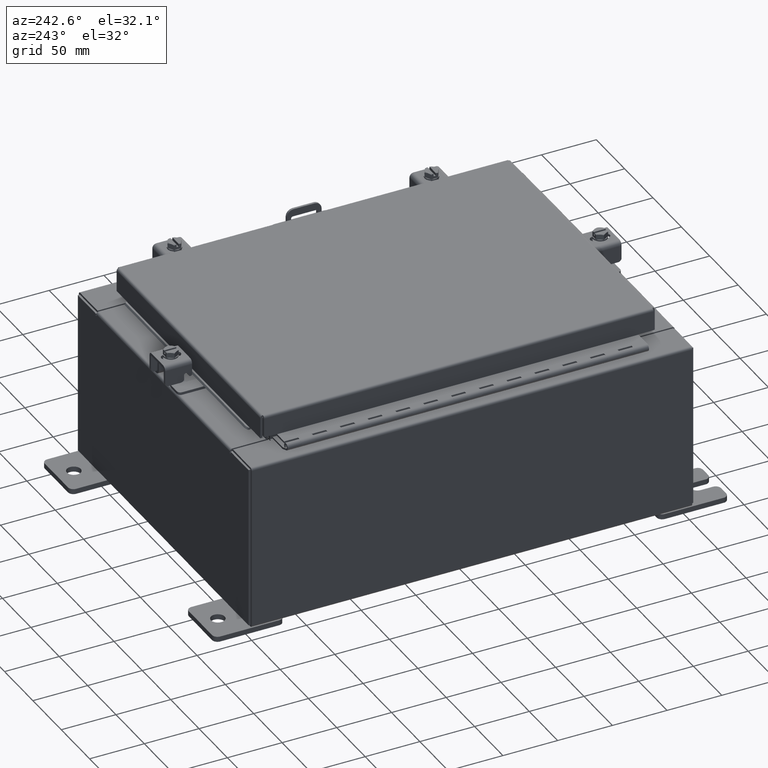
[diagram: clean part render]
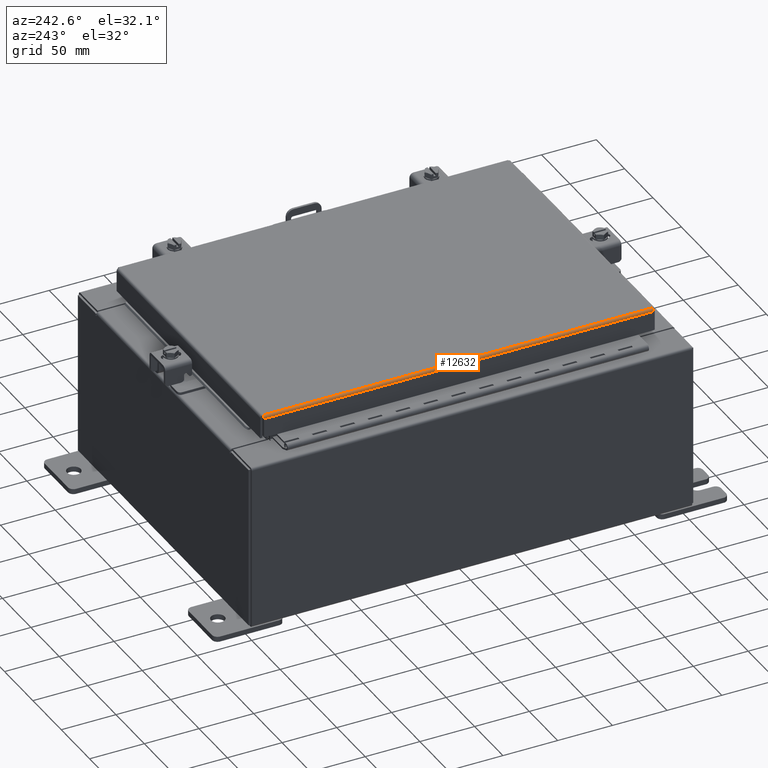
[diagram: same view with one face highlighted and labeled with its STEP entity id]
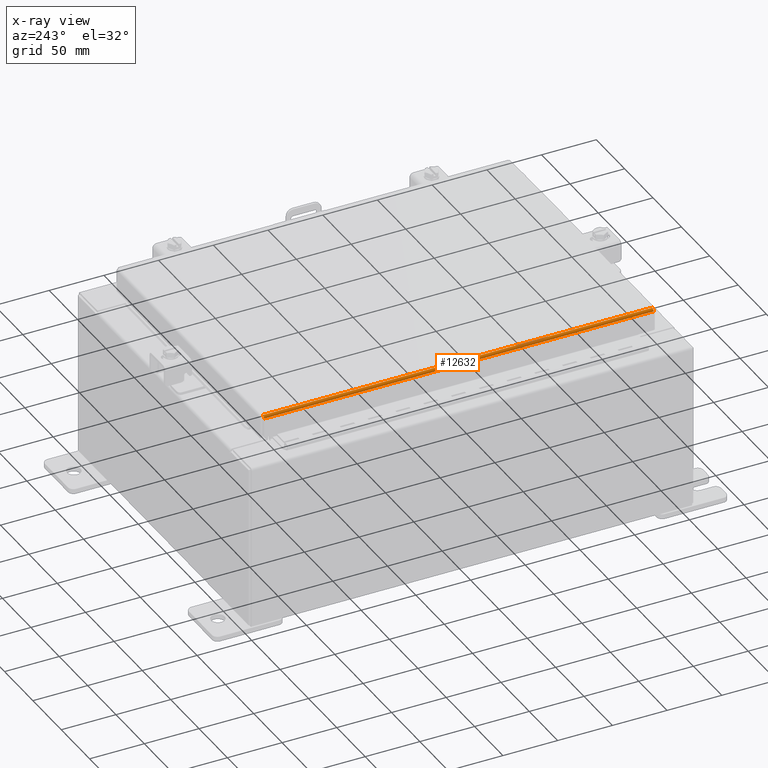
[diagram: x-ray of the same camera — body ghosted, the highlighted face saturated]
A machine part, auxiliary view. The second image highlights one B-rep face of the part: STEP entity #12632.
The next image is the same camera in x-ray: the body ghosted, the highlighted face saturated — about 0% of this face is hidden behind the body in this view.
In plain terms, the highlighted cylindrical surface (edge-blend (fillet) strip) has radius 2.2276 mm, axis along (0, 1, 0).
Its self-contained STEP definition (entity closure, byte-faithful):
#1813 = EDGE_LOOP ( 'NONE', ( #16788, #14822, #17583, #14009 ) ) ;
#2209 = B_SPLINE_CURVE_WITH_KNOTS ( 'NONE', 3,
 ( #5082, #15668, #24504, #9842, #8454, #15431, #23714, #15285, #6972, #23039 ),
 .UNSPECIFIED., .F., .F.,
 ( 4, 2, 2, 2, 4 ),
 ( 0.0000000000000000000, 0.2500000000000000000, 0.5000000000000000000, 0.7500000000000000000, 1.000000000000000000 ),
 .UNSPECIFIED. ) ;
#2611 = VERTEX_POINT ( 'NONE', #16786 ) ;
#3550 = CARTESIAN_POINT ( 'NONE',  ( -5.078000000000001200, 7.005253042344914900, -0.07622009684500732900 ) ) ;
#3731 = CARTESIAN_POINT ( 'NONE',  ( -5.075717403743813500, 7.005348220313559100, -0.06474471054169118900 ) ) ;
#4339 = CARTESIAN_POINT ( 'NONE',  ( -4.990300000000000400, 7.006300000000000400, -2.048885995248197400E-016 ) ) ;
#5082 = CARTESIAN_POINT ( 'NONE',  ( -4.990300000000000400, -7.006300000000000400, -2.048885995248197400E-016 ) ) ;
#5171 = DIRECTION ( 'NONE',  ( -0.0000000000000000000, 1.000000000000000000, -0.0000000000000000000 ) ) ;
#5173 = CARTESIAN_POINT ( 'NONE',  ( -4.990300000000000400, -7.006300000000000400, -2.048885995248197400E-016 ) ) ;
#5327 = LINE ( 'NONE', #13810, #20755 ) ;
#6972 = CARTESIAN_POINT ( 'NONE',  ( -5.078000000000001200, -7.005253042344914900, -0.07622009684500735700 ) ) ;
#7035 = CARTESIAN_POINT ( 'NONE',  ( -5.013255289458311600, 7.006109644062711100, -0.002282596256188923800 ) ) ;
#7627 = CYLINDRICAL_SURFACE ( 'NONE', #17302, 0.08770000000000026400 ) ;
#7689 = B_SPLINE_CURVE_WITH_KNOTS ( 'NONE', 3,
 ( #24600, #3550, #3731, #17318, #8291, #15726, #19717, #7035, #21129, #23078 ),
 .UNSPECIFIED., .F., .F.,
 ( 4, 2, 2, 2, 4 ),
 ( 0.0000000000000000000, 0.2500000000000000000, 0.5000000000000000000, 0.7500000000000000000, 1.000000000000000000 ),
 .UNSPECIFIED. ) ;
#8291 = CARTESIAN_POINT ( 'NONE',  ( -5.060430782078321400, 7.005633754219491700, -0.03380425265820009200 ) ) ;
#8454 = CARTESIAN_POINT ( 'NONE',  ( -5.044195747341800200, -7.005824110156779300, -0.01756921792167976500 ) ) ;
#9424 = VECTOR ( 'NONE', #12694, 39.37007874015748100 ) ;
#9842 = CARTESIAN_POINT ( 'NONE',  ( -5.034467384578528400, -7.005919288125420900, -0.01106893374133176100 ) ) ;
#10932 = DIRECTION ( 'NONE',  ( -1.000000000000000000, 0.0000000000000000000, 3.114992011019675100E-015 ) ) ;
#11155 = CARTESIAN_POINT ( 'NONE',  ( -5.078000000000001200, -7.094000000000000300, -0.08770000000000004200 ) ) ;
#11426 = EDGE_CURVE ( 'NONE', #2611, #17787, #14735, .T. ) ;
#11811 = EDGE_CURVE ( 'NONE', #21619, #24758, #5327, .T. ) ;
#12632 = ADVANCED_FACE ( 'NONE', ( #18940 ), #7627, .T. ) ;
#12694 = DIRECTION ( 'NONE',  ( 3.797360338743712300E-031, -1.000000000000000000, -1.119390514946887900E-045 ) ) ;
#13289 = CARTESIAN_POINT ( 'NONE',  ( -5.078000000000001200, -7.005157864376269700, -0.08770000000000007000 ) ) ;
#13365 = EDGE_CURVE ( 'NONE', #24758, #17787, #2209, .T. ) ;
#13810 = CARTESIAN_POINT ( 'NONE',  ( -4.990300000000000400, 7.006300000000000400, -2.048885995248197400E-016 ) ) ;
#14009 = ORIENTED_EDGE ( 'NONE', *, *, #13365, .F. ) ;
#14735 = LINE ( 'NONE', #11155, #9424 ) ;
#14784 = DIRECTION ( 'NONE',  ( 0.0000000000000000000, -1.000000000000000000, 0.0000000000000000000 ) ) ;
#14822 = ORIENTED_EDGE ( 'NONE', *, *, #17191, .F. ) ;
#15285 = CARTESIAN_POINT ( 'NONE',  ( -5.075717403743813500, -7.005348220313559100, -0.06474471054169118900 ) ) ;
#15431 = CARTESIAN_POINT ( 'NONE',  ( -5.060430782078324100, -7.005633754219490000, -0.03380425265820009900 ) ) ;
#15456 = CARTESIAN_POINT ( 'NONE',  ( -4.990300000000000400, 7.006300000000000400, -0.08770000000000030500 ) ) ;
#15668 = CARTESIAN_POINT ( 'NONE',  ( -5.001779903154992500, -7.006204822031357100, -2.043883832173860400E-016 ) ) ;
#15726 = CARTESIAN_POINT ( 'NONE',  ( -5.044195747341799300, 7.005824110156780200, -0.01756921792167976500 ) ) ;
#16786 = CARTESIAN_POINT ( 'NONE',  ( -5.078000000000001200, 7.005157864376269700, -0.08770000000000004200 ) ) ;
#16788 = ORIENTED_EDGE ( 'NONE', *, *, #11811, .F. ) ;
#17191 = EDGE_CURVE ( 'NONE', #2611, #21619, #7689, .T. ) ;
#17302 = AXIS2_PLACEMENT_3D ( 'NONE', #15456, #5171, #10932 ) ;
#17318 = CARTESIAN_POINT ( 'NONE',  ( -5.066931066258668200, 7.005538576250844900, -0.04353261542147222200 ) ) ;
#17583 = ORIENTED_EDGE ( 'NONE', *, *, #11426, .T. ) ;
#17787 = VERTEX_POINT ( 'NONE', #13289 ) ;
#18940 = FACE_OUTER_BOUND ( 'NONE', #1813, .T. ) ;
#19717 = CARTESIAN_POINT ( 'NONE',  ( -5.034467384578530200, 7.005919288125422600, -0.01106893374133176100 ) ) ;
#20755 = VECTOR ( 'NONE', #14784, 39.37007874015748100 ) ;
#21129 = CARTESIAN_POINT ( 'NONE',  ( -5.001779903154994300, 7.006204822031357100, -2.037547758946368100E-016 ) ) ;
#21619 = VERTEX_POINT ( 'NONE', #4339 ) ;
#23039 = CARTESIAN_POINT ( 'NONE',  ( -5.078000000000001200, -7.005157864376269700, -0.08770000000000007000 ) ) ;
#23078 = CARTESIAN_POINT ( 'NONE',  ( -4.990300000000000400, 7.006300000000000400, -2.048885995248197400E-016 ) ) ;
#23714 = CARTESIAN_POINT ( 'NONE',  ( -5.066931066258668200, -7.005538576250847500, -0.04353261542147222900 ) ) ;
#24504 = CARTESIAN_POINT ( 'NONE',  ( -5.013255289458309800, -7.006109644062711100, -0.002282596256188924700 ) ) ;
#24600 = CARTESIAN_POINT ( 'NONE',  ( -5.078000000000001200, 7.005157864376269700, -0.08770000000000004200 ) ) ;
#24758 = VERTEX_POINT ( 'NONE', #5173 ) ;